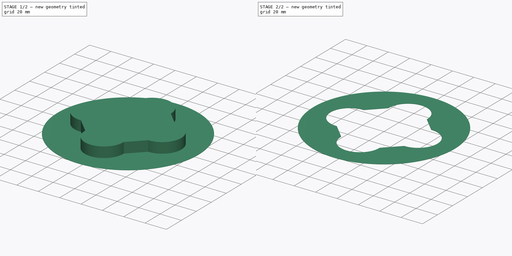
[diagram: build sequence overview — one tinted view per stage of 2, left to right]
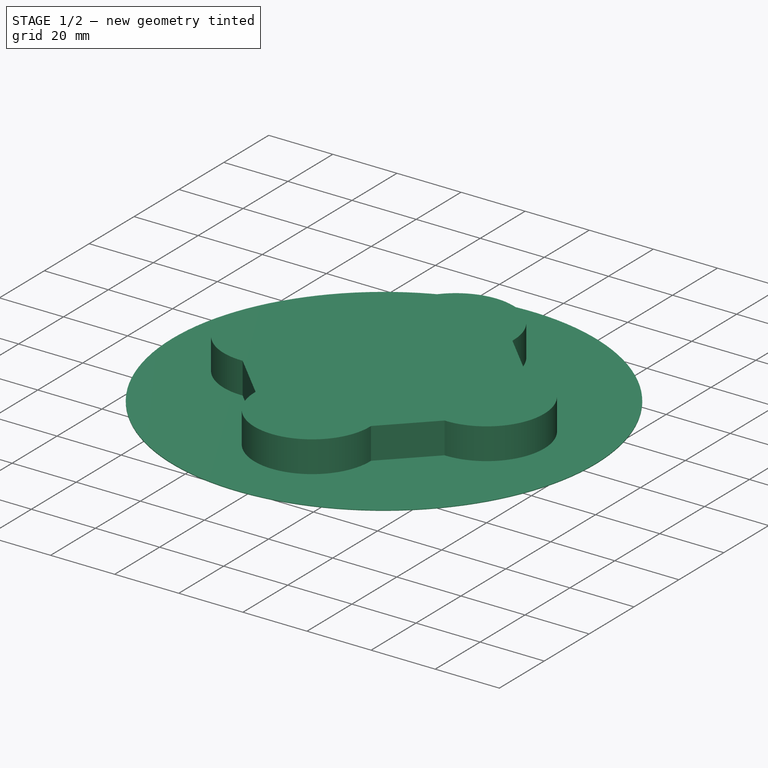
[diagram: stage 1 of 2 — iso view after this stage's code; geometry added in this stage tinted green]
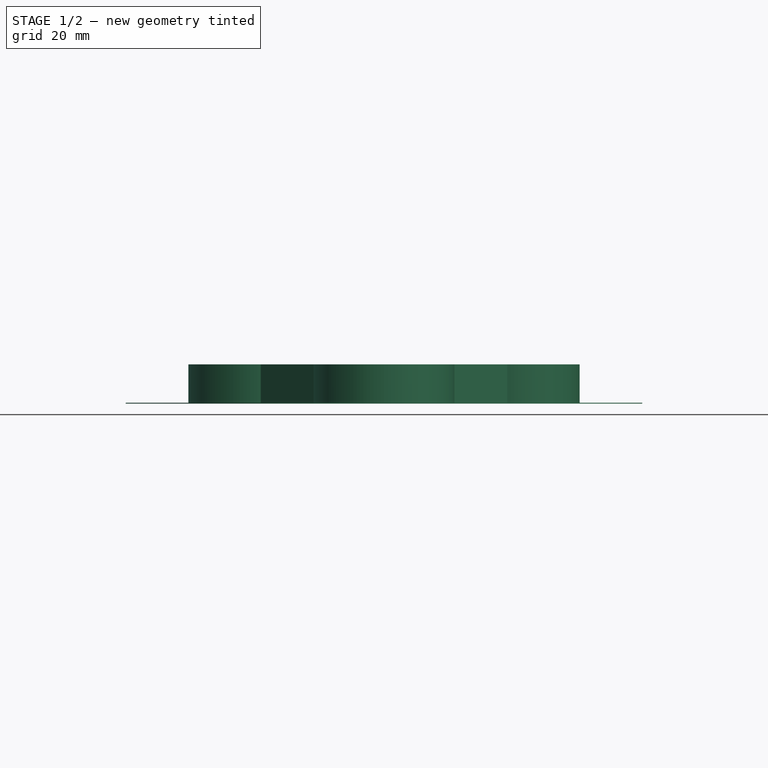
[diagram: stage 1 of 2 — front view after this stage's code; geometry added in this stage tinted green]
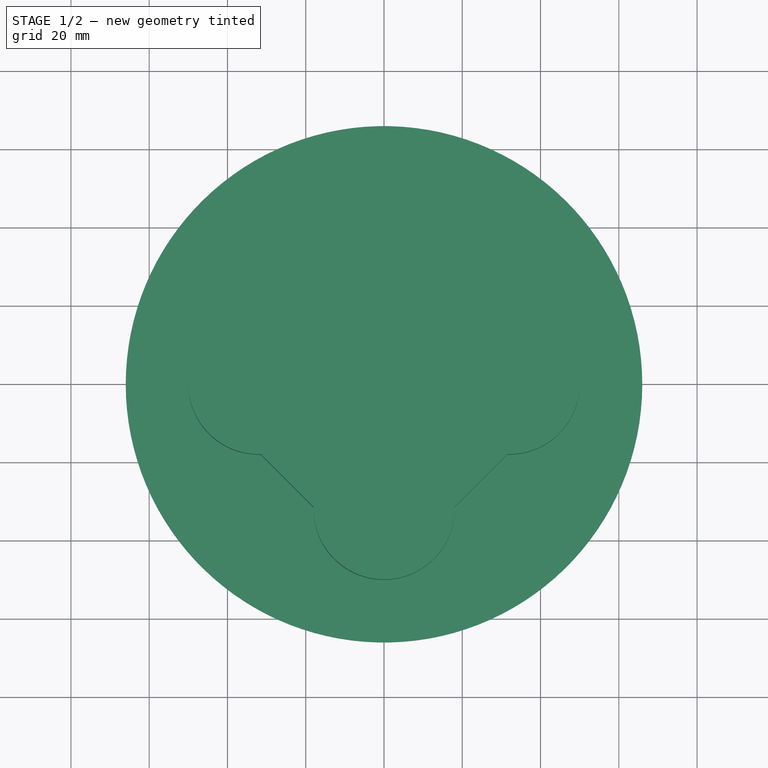
[diagram: stage 1 of 2 — top view after this stage's code; geometry added in this stage tinted green]
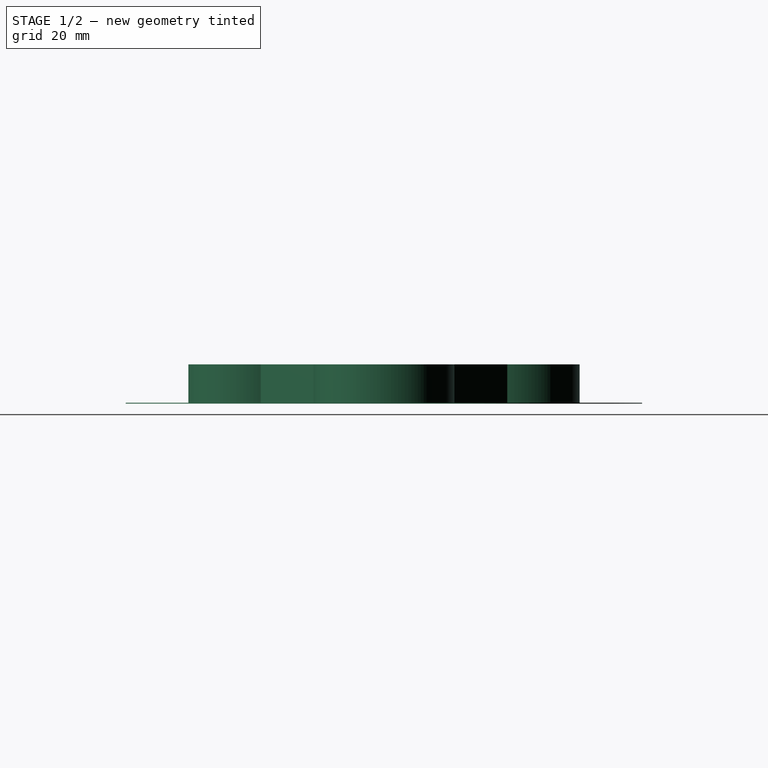
[diagram: stage 1 of 2 — right view after this stage's code; geometry added in this stage tinted green]
FCSTD DOCUMENT  (FreeCAD 0.16R6712 (Git))
Label: dron-circle-slim-66radio
License: All rights reserved
LicenseURL: http://en.wikipedia.org/wiki/All_rights_reserved
objects: Part::Cylinder×1, Sketcher::SketchObject×1, PartDesign::Pad×1, Part::Cut×1
note: 5 computed .brp shape members not serialized (recipe doc carries the construction recipe); baked Part::Feature solids carry a one-line shape summary decoded from their .brp

FEATURE [Part::Cylinder] Cylinder  label="Cilindro"
  Angle = 360
  Height = 0.2
  Radius = 66
FEATURE [Sketcher::SketchObject] Sketch
  sketch-geometry (10):
    g0: Circle [constr] CenterX=0 CenterY=0 CenterZ=0 NormalX=0 NormalY=0 NormalZ=1 Radius=50
    g1: ArcOfCircle CenterX=32 CenterY=0 CenterZ=0 NormalX=0 NormalY=0 NormalZ=1 Radius=18 StartAngle=4.68485 EndAngle=7.88152
    g2: ArcOfCircle CenterX=0 CenterY=32 CenterZ=0 NormalX=0 NormalY=0 NormalZ=1 Radius=18 StartAngle=6.25564 EndAngle=9.45232
    g3: ArcOfCircle CenterX=-32 CenterY=0 CenterZ=0 NormalX=0 NormalY=0 NormalZ=1 Radius=18 StartAngle=1.54325 EndAngle=4.73993
    g4: ArcOfCircle CenterX=0 CenterY=-32 CenterZ=0 NormalX=0 NormalY=0 NormalZ=1 Radius=18 StartAngle=3.11405 EndAngle=6.31073
    g5: LineSegment StartX=-17.9932 StartY=31.5043 StartZ=0 EndX=-31.5043 EndY=17.9932 EndZ=0
    g6: LineSegment StartX=-31.5043 StartY=-17.9932 StartZ=0 EndX=-17.9932 EndY=-31.5043 EndZ=0
    g7: LineSegment StartX=17.9932 StartY=-31.5043 StartZ=0 EndX=31.5043 EndY=-17.9932 EndZ=0
    g8: LineSegment StartX=31.5043 StartY=17.9932 StartZ=0 EndX=17.9932 EndY=31.5043 EndZ=0
    g9: LineSegment [constr] StartX=0 StartY=0 StartZ=0 EndX=41.5823 EndY=41.5823 EndZ=0
  constraints (32):
    c: Coincident(g0,g-1)
    c: Radius(g0) = 50
    c: Tangent(g1,g0)
    c: Radius(g1) = 18  'circulin'
    c: Equal(g1,g2) = 18
    c: Tangent(g2,g0)
    c: Tangent(g4,g0)
    c: Tangent(g3,g0)
    c: Equal(g3,g1)
    c: Equal(g4,g1)
    c: PointOnObject(g3,g-1)
    c: PointOnObject(g2,g-2)
    c: PointOnObject(g1,g-1)
    c: PointOnObject(g4,g-2)
    c: Distance(g-1,g6) = 35
    c: Distance(g-1,g5) = 35
    c: Distance(g-1,g7) = 35
    c: Distance(g-1,g8) = 35
    c: Parallel(g8,g6)
    c: Parallel(g5,g7)
    c: Perpendicular(g8,g7)
    c: Coincident(g9,g-1)
    c: Angle(g9) = 0.785398
    c: Parallel(g7,g9)
    c: Coincident(g6,g3)
    c: Coincident(g5,g3)
    c: Coincident(g6,g4)
    c: Coincident(g7,g4)
    c: Coincident(g2,g8)
    c: Coincident(g2,g5)
    c: Coincident(g1,g7)
    c: Coincident(g1,g8)
FEATURE [PartDesign::Pad] Pad
  Length = 10
  Length2 = 100
  Sketch = -> Sketch
  Type = 0
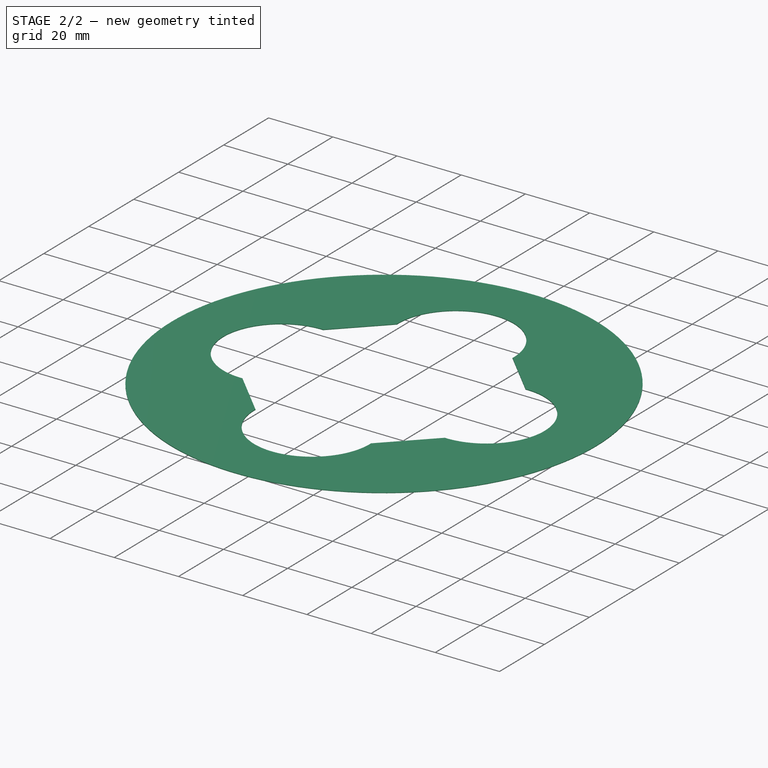
[diagram: stage 2 of 2 — iso view after this stage's code; geometry added in this stage tinted green]
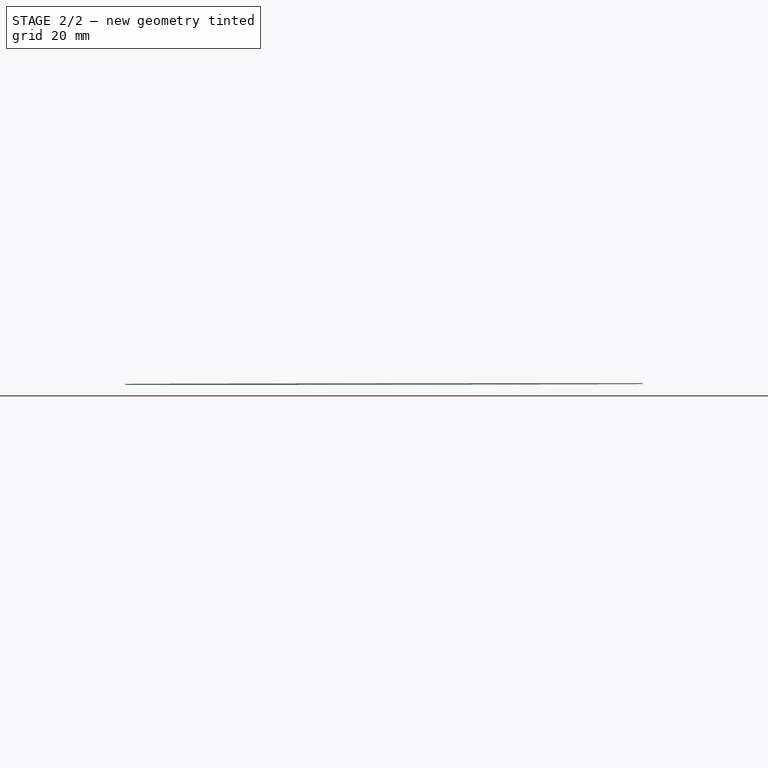
[diagram: stage 2 of 2 — front view after this stage's code; geometry added in this stage tinted green]
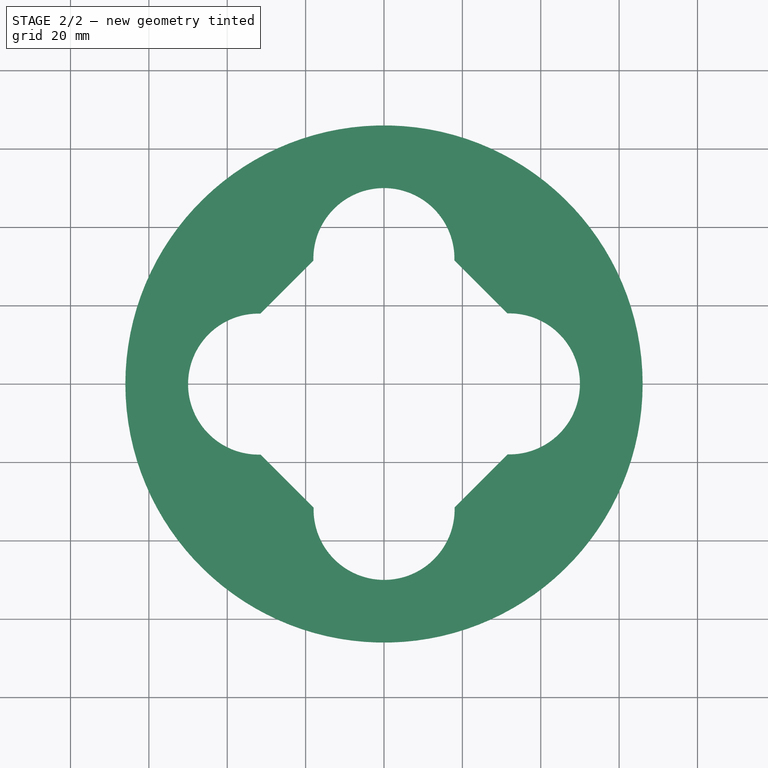
[diagram: stage 2 of 2 — top view after this stage's code; geometry added in this stage tinted green]
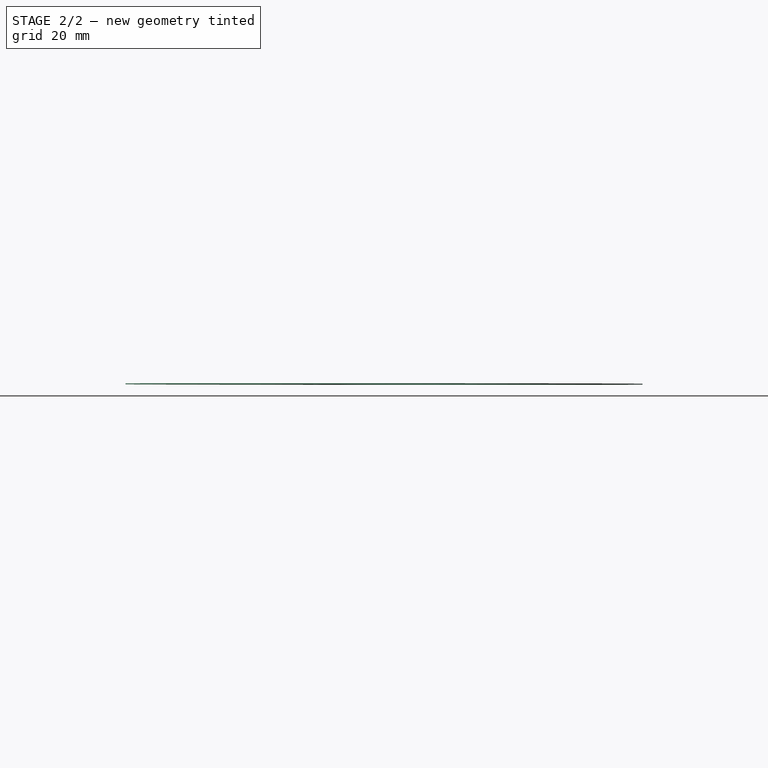
[diagram: stage 2 of 2 — right view after this stage's code; geometry added in this stage tinted green]
FEATURE [Part::Cut] Cut
  Base = -> Cylinder
  Placement = pos=(0,0,0) rot=(-0.401577,-0.816349,0.415105;0.001761rad)
  Tool = -> Pad
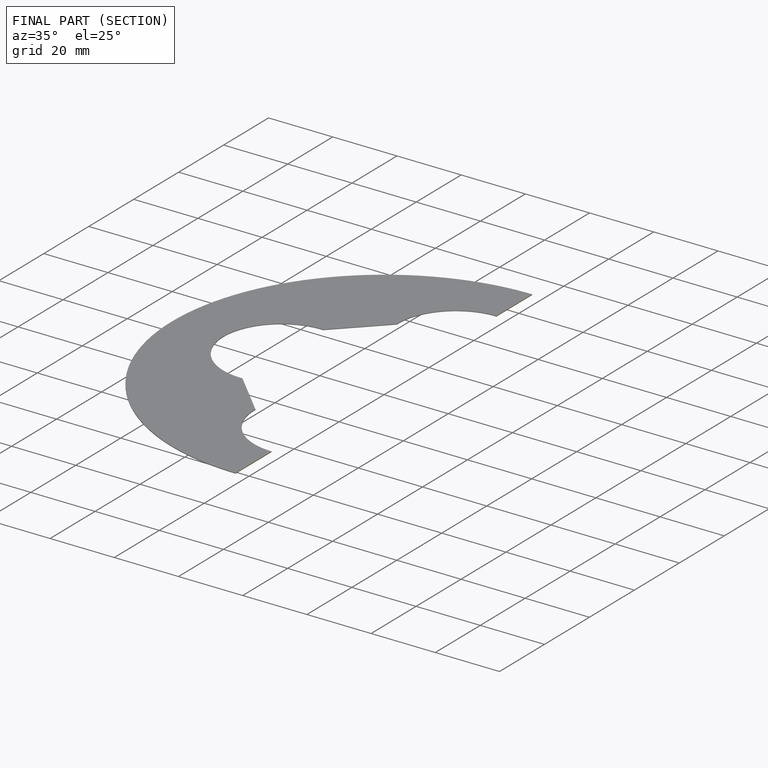
[diagram: finished part — half-section view (interior)]
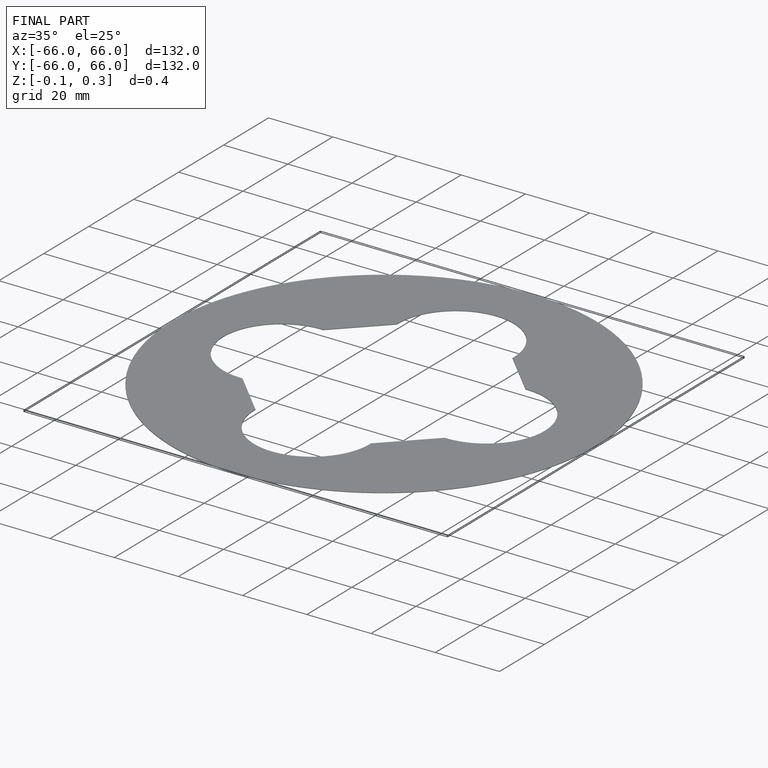
[diagram: finished part — iso view with bounding-box wireframe]
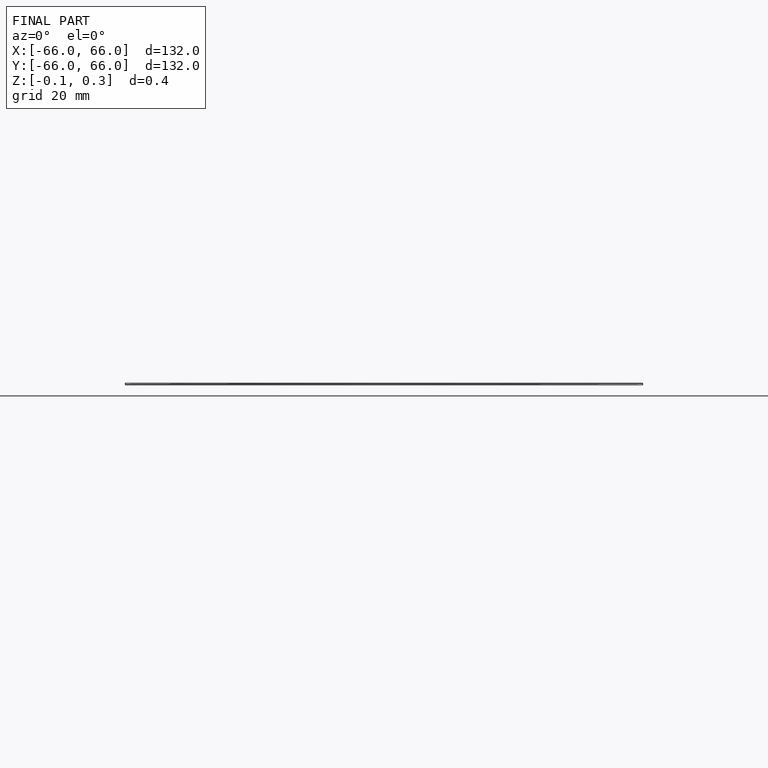
[diagram: finished part — front view with bounding-box wireframe]
